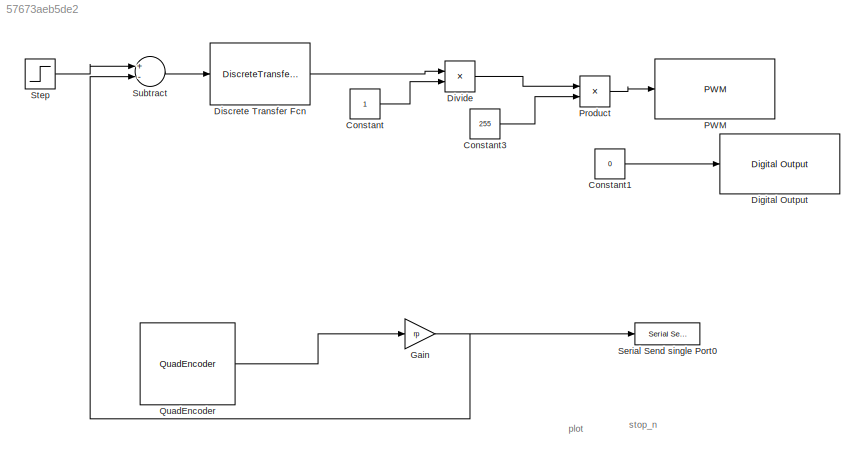
MODEL slx_57673aeb5de2
KIND model
CONFIG AbsTol = auto
CONFIG EnableMultiTasking = on
CONFIG FixedStep = 0.05
CONFIG MaxStep = auto
CONFIG MinStep = auto
CONFIG RelTol = 1e-3
CONFIG SampleTimeConstraint = Unconstrained
CONFIG Solver = FixedStepAuto
CONFIG SolverName = FixedStepAuto
CONFIG StartTime = 0.0
CONFIG StopTime = inf
BLOCK [Constant] Constant
BLOCK [Constant] Constant1
  Value = 0
BLOCK [Constant] Constant3
  Value = 255
BLOCK [Reference] Digital Output  REF=arduinolib/Digital Output
  Ports = [1]
  SourceBlock = arduinolib/Digital Output
  SourceProductBaseCode = ARDUINO
  SourceProductName = Simulink Support Package for Arduino Hardware
  SourceType = Arduino Digital Output
BLOCK [DiscreteTransferFcn] Discrete Transfer Fcn
  Denominator = [1 -0.9436]
  InputPortMap = u0
  Numerator = [0.08 -0.07922]
  Ports = [1, 1]
BLOCK [Product] Divide
  InputSameDT = off
  Inputs = */
  OutDataTypeStr = Inherit: Inherit via internal rule
  Ports = [2, 1]
  RndMeth = Floor
  SaturateOnIntegerOverflow = off
BLOCK [Gain] Gain
  Gain = rp
  OutDataTypeStr = Inherit: Inherit via internal rule
  ParamDataTypeStr = Inherit: Inherit via internal rule
  SaturateOnIntegerOverflow = off
BLOCK [Reference] PWM  REF=arduinolib/PWM
  Ports = [1]
  SourceBlock = arduinolib/PWM
  SourceProductBaseCode = ARDUINO
  SourceProductName = Simulink Support Package for Arduino Hardware
  SourceType = Arduino PWM
BLOCK [Product] Product
  InputSameDT = off
  OutDataTypeStr = Inherit: Inherit via internal rule
  Ports = [2, 1]
  RndMeth = Floor
  SaturateOnIntegerOverflow = off
BLOCK [Reference] QuadEncoder  REF=THLlib/QuadEncoder
  Ports = [0, 1]
  SourceBlock = THLlib/QuadEncoder
  SourceProductName = Take Home Labs Arduino Support Package
  SourceType = SubSystem
BLOCK [Reference] Serial Send single Port0  REF=THLlib/Serial Send single Port0
  Ports = [1]
  SourceBlock = THLlib/Serial Send single Port0
  SourceProductName = Take Home Labs Arduino Support Package
  SourceType = SubSystem
BLOCK [Step] Step
  After = 5
  SampleTime = 0
BLOCK [Sum] Subtract
  InputSameDT = off
  Inputs = +-
  OutDataTypeStr = Inherit: Inherit via internal rule
  Ports = [2, 1]
  SaturateOnIntegerOverflow = off
ANNOTATION (root): plot
ANNOTATION (root): stop_n
LINE Constant1:1 -> Digital Output:1
LINE Constant3:1 -> Product:2
LINE Constant:1 -> Divide:2
LINE Discrete Transfer Fcn:1 -> Divide:1
LINE Divide:1 -> Product:1
NET Gain:1 -> Serial Send single Port0:1, Subtract:2
LINE Product:1 -> PWM:1
LINE QuadEncoder:1 -> Gain:1
LINE Step:1 -> Subtract:1
LINE Subtract:1 -> Discrete Transfer Fcn:1
note: NET lines group one-source signal fan-out (src -> all destinations, sorted); 1:1 wires keep LINE
